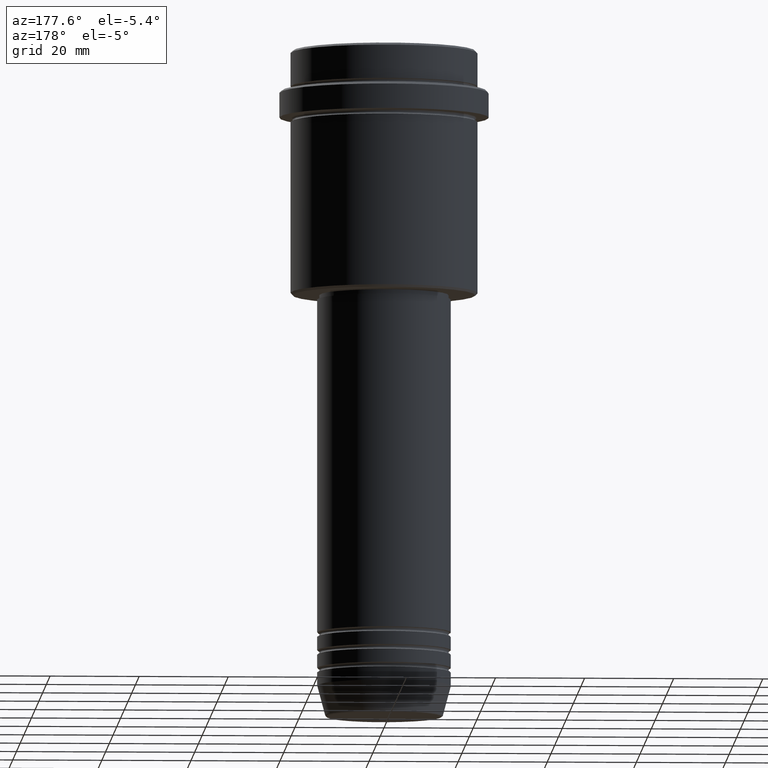
[diagram: clean part render]
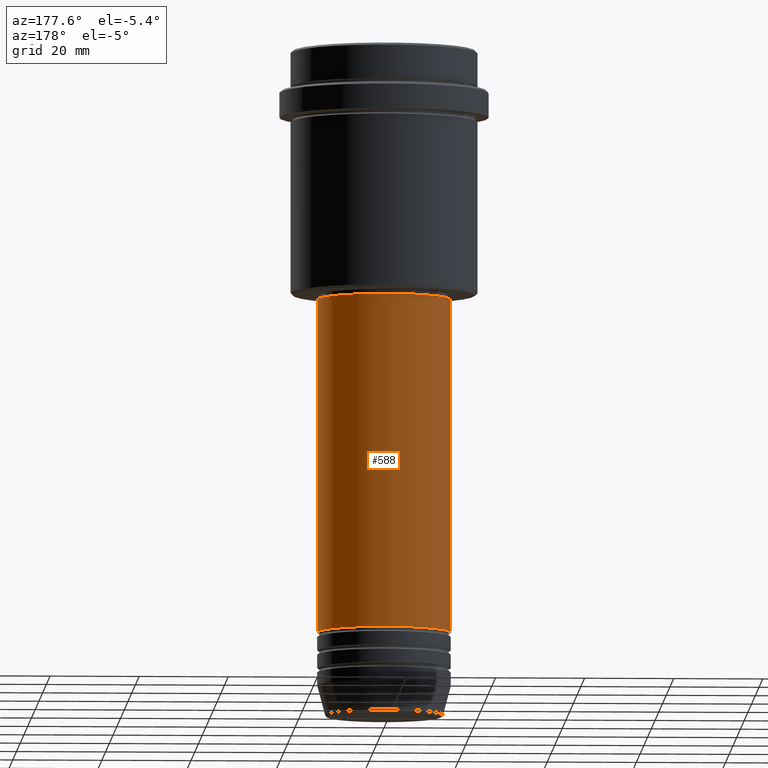
[diagram: same view with one face highlighted and labeled with its STEP entity id]
A machine part, auxiliary view. The second image highlights one B-rep face of the part: STEP entity #588.
In plain terms, the highlighted cylindrical surface (partial cylindrical patch) has radius 15 mm, axis along (-0, -0, 1).
Its self-contained STEP definition (entity closure, byte-faithful):
#22 = CARTESIAN_POINT ( 'NONE',  ( 0.000000000000000000, 0.000000000000000000, -130.9999999999998579 ) ) ;
#41 = CARTESIAN_POINT ( 'NONE',  ( -15.00000000000000000, 1.836970198721029589E-15, -130.9999999999998579 ) ) ;
#54 = VERTEX_POINT ( 'NONE', #282 ) ;
#101 = CARTESIAN_POINT ( 'NONE',  ( -15.00000000000000000, 1.836970198721029589E-15, -55.99999999999997158 ) ) ;
#146 = AXIS2_PLACEMENT_3D ( 'NONE', #931, #816, #397 ) ;
#210 = VERTEX_POINT ( 'NONE', #41 ) ;
#221 = EDGE_LOOP ( 'NONE', ( #815, #958, #742, #781 ) ) ;
#282 = CARTESIAN_POINT ( 'NONE',  ( 15.00000000000000000, 0.000000000000000000, -130.9999999999998579 ) ) ;
#314 = VECTOR ( 'NONE', #1007, 1000.000000000000000 ) ;
#342 = CARTESIAN_POINT ( 'NONE',  ( 15.00000000000000000, 0.000000000000000000, 0.000000000000000000 ) ) ;
#343 = EDGE_CURVE ( 'NONE', #714, #1122, #408, .T. ) ;
#368 = EDGE_CURVE ( 'NONE', #210, #1122, #942, .T. ) ;
#397 = DIRECTION ( 'NONE',  ( 1.000000000000000000, 0.000000000000000000, 0.000000000000000000 ) ) ;
#408 = CIRCLE ( 'NONE', #146, 15.00000000000000000 ) ;
#429 = CYLINDRICAL_SURFACE ( 'NONE', #1293, 15.00000000000000000 ) ;
#468 = LINE ( 'NONE', #342, #314 ) ;
#507 = CARTESIAN_POINT ( 'NONE',  ( -15.00000000000000000, 1.836970198721029589E-15, 0.000000000000000000 ) ) ;
#508 = DIRECTION ( 'NONE',  ( -0.000000000000000000, -0.000000000000000000, 1.000000000000000000 ) ) ;
#532 = FACE_OUTER_BOUND ( 'NONE', #221, .T. ) ;
#588 = ADVANCED_FACE ( 'NONE', ( #532 ), #429, .T. ) ;
#647 = DIRECTION ( 'NONE',  ( -0.000000000000000000, -0.000000000000000000, 1.000000000000000000 ) ) ;
#714 = VERTEX_POINT ( 'NONE', #1102 ) ;
#742 = ORIENTED_EDGE ( 'NONE', *, *, #343, .F. ) ;
#781 = ORIENTED_EDGE ( 'NONE', *, *, #904, .F. ) ;
#815 = ORIENTED_EDGE ( 'NONE', *, *, #1377, .T. ) ;
#816 = DIRECTION ( 'NONE',  ( -0.000000000000000000, -0.000000000000000000, 1.000000000000000000 ) ) ;
#847 = VECTOR ( 'NONE', #1150, 1000.000000000000000 ) ;
#904 = EDGE_CURVE ( 'NONE', #54, #714, #468, .T. ) ;
#931 = CARTESIAN_POINT ( 'NONE',  ( 0.000000000000000000, 0.000000000000000000, -55.99999999999997158 ) ) ;
#942 = LINE ( 'NONE', #507, #847 ) ;
#958 = ORIENTED_EDGE ( 'NONE', *, *, #368, .T. ) ;
#973 = CARTESIAN_POINT ( 'NONE',  ( 0.000000000000000000, 0.000000000000000000, 0.000000000000000000 ) ) ;
#1007 = DIRECTION ( 'NONE',  ( -0.000000000000000000, -0.000000000000000000, 1.000000000000000000 ) ) ;
#1062 = AXIS2_PLACEMENT_3D ( 'NONE', #22, #508, #1203 ) ;
#1085 = CIRCLE ( 'NONE', #1062, 15.00000000000000000 ) ;
#1102 = CARTESIAN_POINT ( 'NONE',  ( 15.00000000000000000, 0.000000000000000000, -55.99999999999997158 ) ) ;
#1122 = VERTEX_POINT ( 'NONE', #101 ) ;
#1150 = DIRECTION ( 'NONE',  ( -0.000000000000000000, -0.000000000000000000, 1.000000000000000000 ) ) ;
#1203 = DIRECTION ( 'NONE',  ( 1.000000000000000000, 0.000000000000000000, 0.000000000000000000 ) ) ;
#1293 = AXIS2_PLACEMENT_3D ( 'NONE', #973, #647, #1412 ) ;
#1377 = EDGE_CURVE ( 'NONE', #54, #210, #1085, .T. ) ;
#1412 = DIRECTION ( 'NONE',  ( 1.000000000000000000, 0.000000000000000000, 0.000000000000000000 ) ) ;